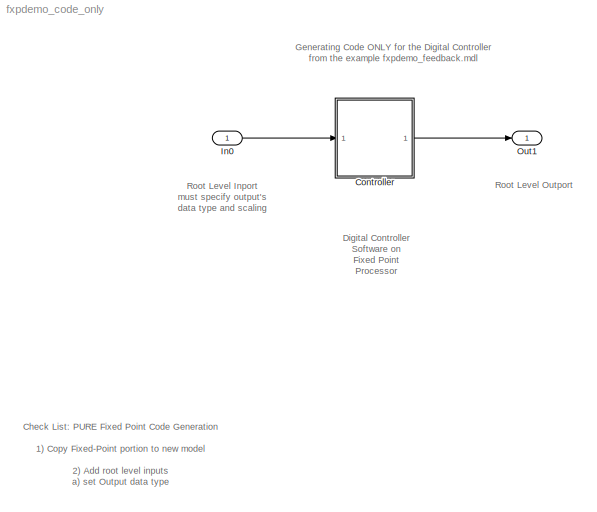
MODEL fxpdemo_code_only
KIND model
CONFIG AbsTol = 1e-6
CONFIG FixedStep = tsamp
CONFIG MaxStep = auto
CONFIG MinStep = auto
CONFIG PreLoadFcn = preload_feedback
CONFIG RelTol = 1e-3
CONFIG Solver = FixedStepDiscrete
CONFIG SolverMode = SingleTasking
CONFIG StartTime = 0.0
CONFIG StopTime = 4-2*tsamp
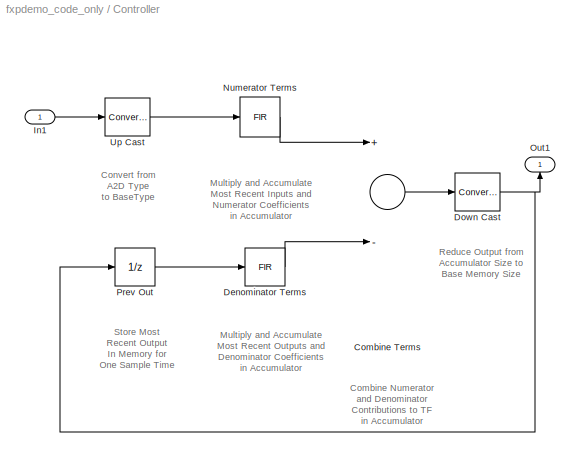
BLOCK [SubSystem] Controller
  Ports = [1, 1]
  TreatAsAtomicUnit = off
BLOCK [Sum] Controller/Combine Terms
  InputSameDT = off
  Inputs = +-
  OutDataType = AccumType
  OutDataTypeMode = Specify via dialog
  OutScaling = 2^(-28)
  Ports = [2, 1]
  ShowAdditionalParam = on
BLOCK [Reference] Controller/Denominator Terms  REF=fixpt_lib_4/Filters/FIR  (lib defined in mdl_ef9dacb0d1df)
  DoSatur = on
  GainDataType = BaseType
  GainDataTypeScalingMode = Specify via dialog
  GainScaling = 2^-14
  LockScale = off
  MatRadixGroup = Best Precision: Element-wise
  OutDataType = AccumType
  OutScaling = 2^(-27)
  OutputDataTypeScalingMode = Specify via dialog
  Ports = [1, 1]
  RndMeth = Floor
  SourceBlock = fixpt_lib_4/Filters/FIR
  SourceType = Fixed-Point FIR
  mgainval = dden(2:length(dden))
  samptime = tsamp
  vinit = 0.0
BLOCK [Reference] Controller/Down Cast  REF=fixpt_lib_4/Data Type/Conversion  (lib defined in mdl_ef9dacb0d1df)
  ConvertRealWorld = Real World Value
  DoSatur = on
  LockScale = off
  OutDataType = BaseType
  OutScaling = 2^(-12)
  OutputDataTypeScalingMode = Specify via dialog
  Ports = [1, 1]
  RndMeth = Floor
  SourceBlock = fixpt_lib_4/Data Type/Conversion
  SourceType = Fixed-Point to Fixed-Point Conversion
BLOCK [Inport] Controller/In1
BLOCK [Reference] Controller/Numerator Terms  REF=fixpt_lib_4/Filters/FIR  (lib defined in mdl_ef9dacb0d1df)
  DoSatur = on
  GainDataType = BaseType
  GainDataTypeScalingMode = Specify via dialog
  GainScaling = 2^-14
  LockScale = off
  MatRadixGroup = Best Precision: Element-wise
  OutDataType = AccumType
  OutScaling = 2^(-28)
  OutputDataTypeScalingMode = Specify via dialog
  Ports = [1, 1]
  RndMeth = Floor
  SourceBlock = fixpt_lib_4/Filters/FIR
  SourceType = Fixed-Point FIR
  mgainval = dnum
  samptime = tsamp
  vinit = 0.0
BLOCK [Outport] Controller/Out1
  InitialOutput = 0
BLOCK [UnitDelay] Controller/Prev Out
  SampleTime = tsamp
  X0 = 0.0
BLOCK [Reference] Controller/Up Cast  REF=fixpt_lib_4/Data Type/Conversion  (lib defined in mdl_ef9dacb0d1df)
  ConvertRealWorld = Real World Value
  DoSatur = on
  LockScale = off
  OutDataType = BaseType
  OutScaling = 2^(-12)
  OutputDataTypeScalingMode = Specify via dialog
  Ports = [1, 1]
  RndMeth = Floor
  SourceBlock = fixpt_lib_4/Data Type/Conversion
  SourceType = Fixed-Point to Fixed-Point Conversion
BLOCK [Inport] In0
  DataType = Specify via dialog
  Interpolate = off
  OutDataType = sfix(8)
  OutScaling = 2^-4
  ShowAdditionalParam = on
BLOCK [Outport] Out1
ANNOTATION (root): Check List: PURE Fixed Point Code Generation\n\n1) Copy Fixed-Point portion to new model\n\n2) Add root level inputs\n a) set Output data type\n b) set Ouput scaling value\n\n3) Under menu 'Simulation/Parameters...'\n a) set Solver Type to 'Fixed-step'\n b) also set Solver Type to 'discrete (no continuous states)'\n c) set Fixed step size to appropriate value\n\n4) Under menu 'Tools/RTW Options......<+214ch>
ANNOTATION (root): Digital Controller\nSoftware on\nFixed Point \nProcessor
ANNOTATION (root): Generating Code ONLY for the Digital Controller \nfrom the example fxpdemo_feedback.mdl
ANNOTATION (root): Root Level Inport\nmust specify output's\ndata type and scaling
ANNOTATION (root): Root Level Outport
ANNOTATION Controller: Combine Numerator \nand Denominator \nContributions to TF\nin Accumulator
ANNOTATION Controller: Convert from \nA2D Type\nto BaseType
ANNOTATION Controller: Multiply and Accumulate\nMost Recent Inputs and\nNumerator Coefficients\nin Accumulator
ANNOTATION Controller: Multiply and Accumulate\nMost Recent Outputs and\nDenominator Coefficients\nin Accumulator
ANNOTATION Controller: Reduce Output from\nAccumulator Size to\nBase Memory Size
ANNOTATION Controller: Store Most\nRecent Output\nIn Memory for\nOne Sample Time
LINE Controller/Combine Terms:1 -> Controller/Down Cast:1
LINE Controller/Denominator Terms:1 -> Controller/Combine Terms:2
NET Controller/Down Cast:1 -> Controller/Out1:1, Controller/Prev Out:1
LINE Controller/In1:1 -> Controller/Up Cast:1
LINE Controller/Numerator Terms:1 -> Controller/Combine Terms:1
LINE Controller/Prev Out:1 -> Controller/Denominator Terms:1
LINE Controller/Up Cast:1 -> Controller/Numerator Terms:1
LINE Controller:1 -> Out1:1
LINE In0:1 -> Controller:1
note: NET lines group one-source signal fan-out (src -> all destinations, sorted); 1:1 wires keep LINE
